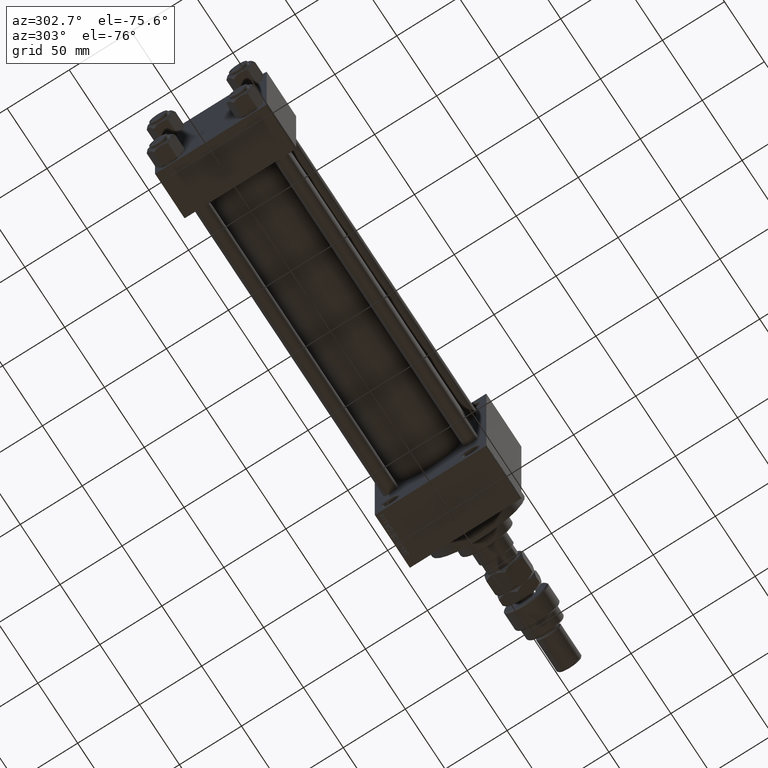
[diagram: clean part render]
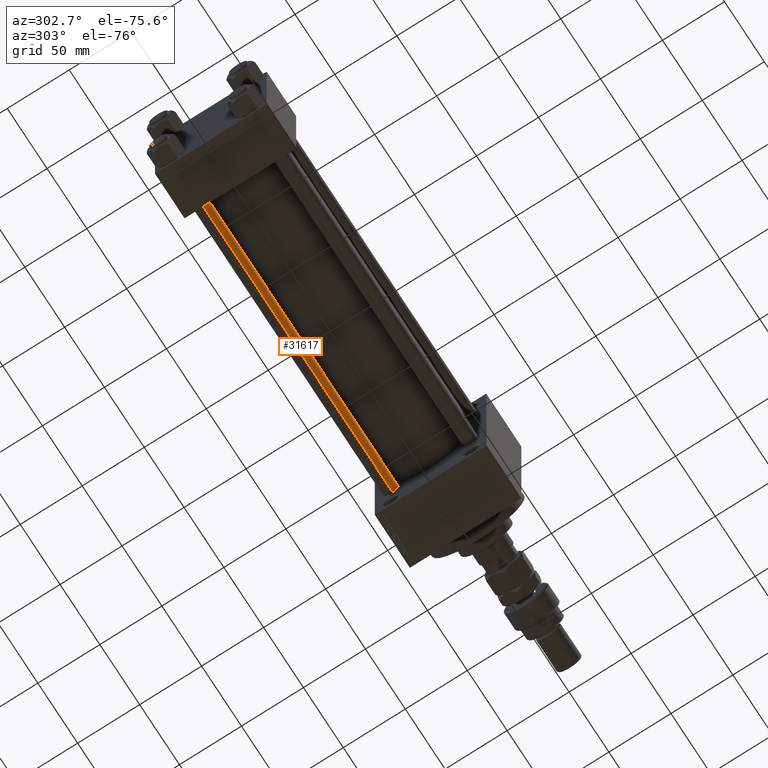
[diagram: same view with one face highlighted and labeled with its STEP entity id]
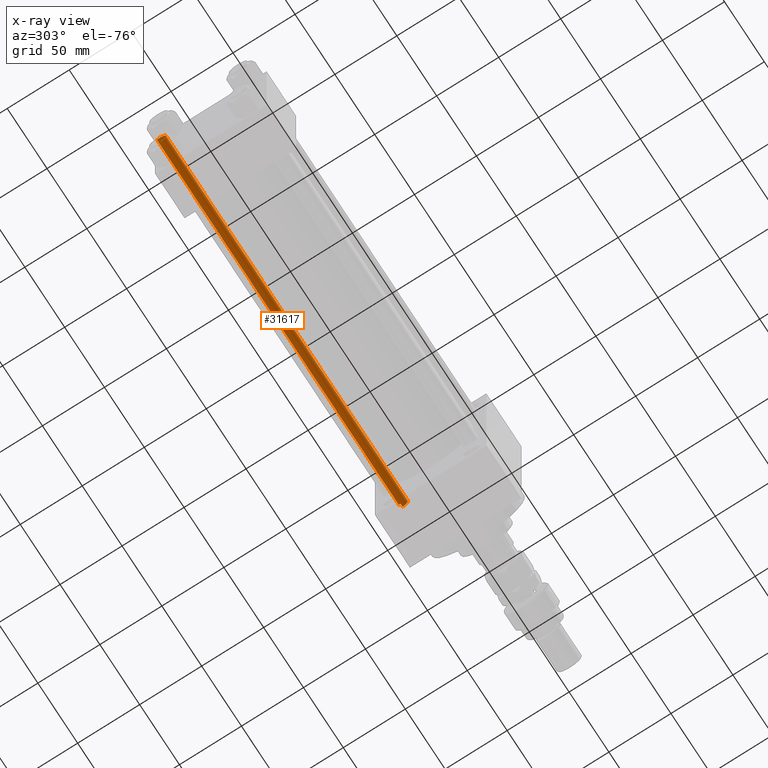
[diagram: x-ray of the same camera — body ghosted, the highlighted face saturated]
A machine part, auxiliary view. The second image highlights one B-rep face of the part: STEP entity #31617.
The next image is the same camera in x-ray: the body ghosted, the highlighted face saturated — about 0% of this face is hidden behind the body in this view.
In plain terms, the highlighted cylindrical surface (edge-blend (fillet) strip) has radius 6 mm, axis along (1, -0, 0).
Its self-contained STEP definition (entity closure, byte-faithful):
#382 = DIRECTION ( 'NONE',  ( -0.000000000000000000, -0.000000000000000000, -1.000000000000000000 ) ) ;
#625 = DIRECTION ( 'NONE',  ( -1.000000000000000000, 0.000000000000000000, 0.000000000000000000 ) ) ;
#1060 = CARTESIAN_POINT ( 'NONE',  ( -6.000000000000000888, 0.000000000000000000, 304.5000000000000000 ) ) ;
#3107 = EDGE_CURVE ( 'NONE', #6228, #10237, #3944, .T. ) ;
#3944 = LINE ( 'NONE', #39117, #28793 ) ;
#5693 = ORIENTED_EDGE ( 'NONE', *, *, #22621, .T. ) ;
#6228 = VERTEX_POINT ( 'NONE', #37129 ) ;
#7204 = CARTESIAN_POINT ( 'NONE',  ( 0.000000000000000000, 0.000000000000000000, 0.5000000000000004441 ) ) ;
#8238 = CYLINDRICAL_SURFACE ( 'NONE', #37140, 6.000000000000000888 ) ;
#9472 = AXIS2_PLACEMENT_3D ( 'NONE', #7204, #10248, #22361 ) ;
#10237 = VERTEX_POINT ( 'NONE', #14074 ) ;
#10248 = DIRECTION ( 'NONE',  ( -0.000000000000000000, -0.000000000000000000, 1.000000000000000000 ) ) ;
#14074 = CARTESIAN_POINT ( 'NONE',  ( 6.000000000000000888, 7.347880794884120722E-16, 0.5000000000000004441 ) ) ;
#14193 = DIRECTION ( 'NONE',  ( -0.000000000000000000, -0.000000000000000000, -1.000000000000000000 ) ) ;
#15218 = DIRECTION ( 'NONE',  ( 0.000000000000000000, 0.000000000000000000, -1.000000000000000000 ) ) ;
#15479 = CARTESIAN_POINT ( 'NONE',  ( 0.000000000000000000, 0.000000000000000000, 304.5000000000000000 ) ) ;
#16490 = ORIENTED_EDGE ( 'NONE', *, *, #43060, .T. ) ;
#22361 = DIRECTION ( 'NONE',  ( 1.000000000000000000, 0.000000000000000000, 0.000000000000000000 ) ) ;
#22621 = EDGE_CURVE ( 'NONE', #26997, #10237, #47443, .T. ) ;
#24135 = DIRECTION ( 'NONE',  ( -0.000000000000000000, -0.000000000000000000, -1.000000000000000000 ) ) ;
#25826 = LINE ( 'NONE', #41055, #40228 ) ;
#26377 = EDGE_CURVE ( 'NONE', #48437, #26997, #25826, .T. ) ;
#26997 = VERTEX_POINT ( 'NONE', #41186 ) ;
#27688 = CARTESIAN_POINT ( 'NONE',  ( 0.000000000000000000, 0.000000000000000000, 305.0000000000000000 ) ) ;
#28793 = VECTOR ( 'NONE', #382, 1000.000000000000000 ) ;
#30664 = DIRECTION ( 'NONE',  ( 1.000000000000000000, 0.000000000000000000, 0.000000000000000000 ) ) ;
#31617 = ADVANCED_FACE ( 'NONE', ( #46702 ), #8238, .T. ) ;
#33929 = AXIS2_PLACEMENT_3D ( 'NONE', #15479, #15218, #30664 ) ;
#37129 = CARTESIAN_POINT ( 'NONE',  ( 6.000000000000000888, 7.347880794884120722E-16, 304.5000000000000000 ) ) ;
#37140 = AXIS2_PLACEMENT_3D ( 'NONE', #27688, #24135, #625 ) ;
#38824 = ORIENTED_EDGE ( 'NONE', *, *, #26377, .T. ) ;
#39117 = CARTESIAN_POINT ( 'NONE',  ( 6.000000000000000888, 7.347880794884120722E-16, 305.0000000000000000 ) ) ;
#40228 = VECTOR ( 'NONE', #14193, 1000.000000000000000 ) ;
#41055 = CARTESIAN_POINT ( 'NONE',  ( -6.000000000000000888, 0.000000000000000000, 305.0000000000000000 ) ) ;
#41186 = CARTESIAN_POINT ( 'NONE',  ( -6.000000000000000888, 0.000000000000000000, 0.5000000000000004441 ) ) ;
#43060 = EDGE_CURVE ( 'NONE', #6228, #48437, #49298, .T. ) ;
#44878 = ORIENTED_EDGE ( 'NONE', *, *, #3107, .F. ) ;
#46702 = FACE_OUTER_BOUND ( 'NONE', #48497, .T. ) ;
#47443 = CIRCLE ( 'NONE', #9472, 6.000000000000000888 ) ;
#48437 = VERTEX_POINT ( 'NONE', #1060 ) ;
#48497 = EDGE_LOOP ( 'NONE', ( #44878, #16490, #38824, #5693 ) ) ;
#49298 = CIRCLE ( 'NONE', #33929, 6.000000000000000888 ) ;